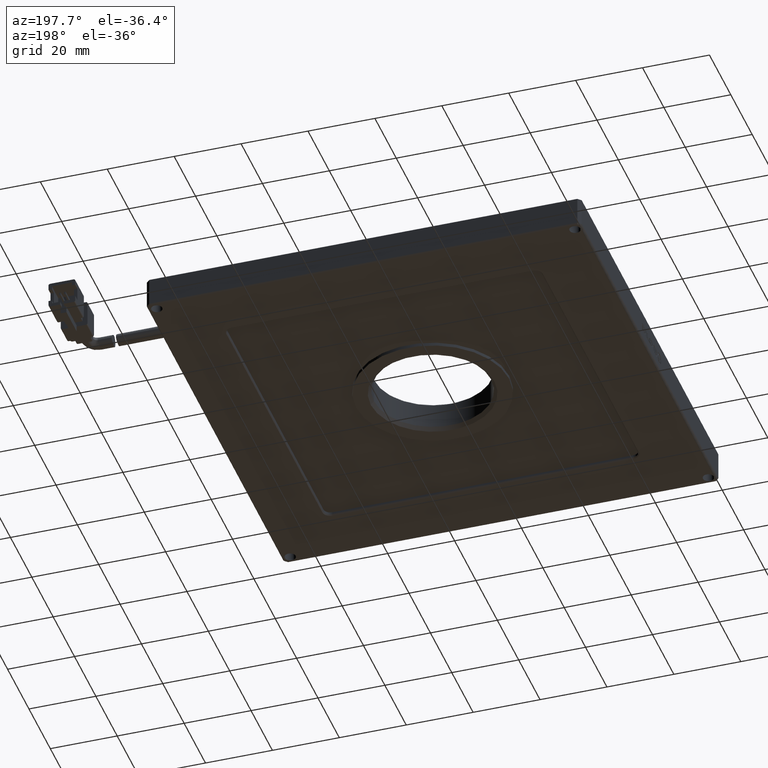
[diagram: clean part render]
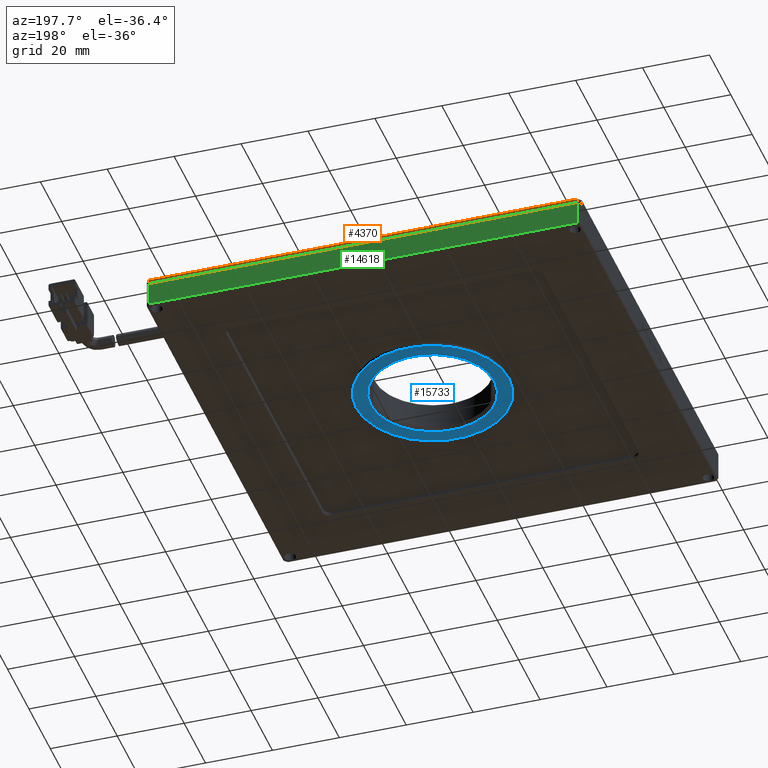
[diagram: same view with three faces highlighted in distinct colors, each labeled with its STEP entity id]
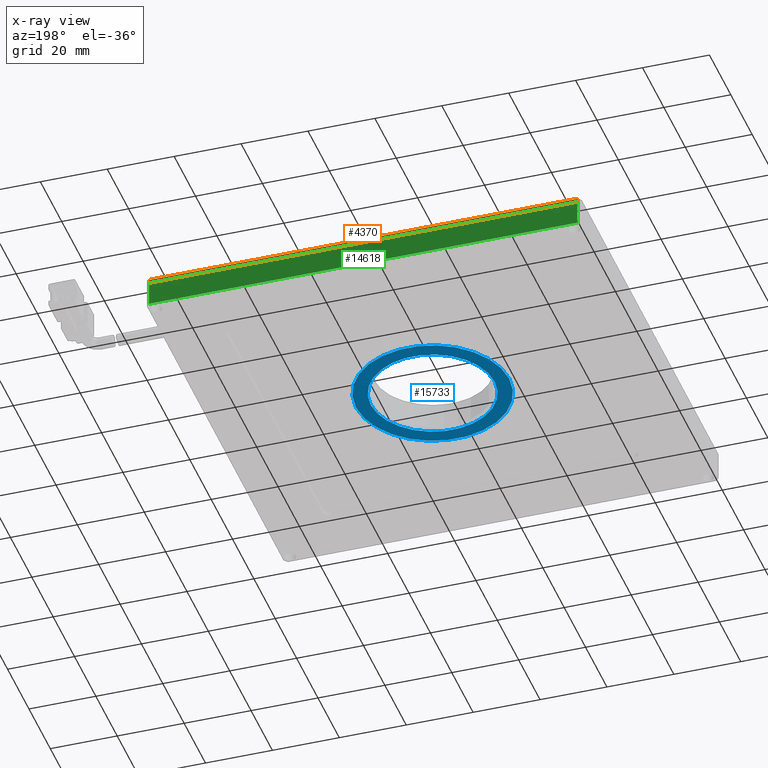
[diagram: x-ray of the same camera — body ghosted, the three highlighted faces saturated]
A machine part, auxiliary view with three faces highlighted in distinct colors.
The next image is the same camera in x-ray (body ghosted, the three faces saturated) — at least one of them is partly hidden behind the body in this view.
Their STEP definitions:

[orange] entity #4370 — the highlighted planar face has unit normal (0, -1, 0).
#1222 = DIRECTION ( 'NONE',  ( -0.0000000000000000000, -0.0000000000000000000, -1.000000000000000000 ) ) ;
#1579 = CARTESIAN_POINT ( 'NONE',  ( -38.87092592592590300, 89.05944444444446600, 6.000000000000000000 ) ) ;
#1596 = CARTESIAN_POINT ( 'NONE',  ( -37.87092592592593100, 89.05944444444446600, 5.699999999999981500 ) ) ;
#1666 = DIRECTION ( 'NONE',  ( -1.000000000000000000, -0.0000000000000000000, -0.0000000000000000000 ) ) ;
#1688 = VERTEX_POINT ( 'NONE', #6967 ) ;
#1726 = VERTEX_POINT ( 'NONE', #8541 ) ;
#2131 = ORIENTED_EDGE ( 'NONE', *, *, #2532, .T. ) ;
#2532 = EDGE_CURVE ( 'NONE', #1726, #19391, #13946, .T. ) ;
#3446 = EDGE_CURVE ( 'NONE', #14021, #1688, #12063, .T. ) ;
#4320 = VECTOR ( 'NONE', #1666, 1000.000000000000000 ) ;
#4370 = ADVANCED_FACE ( 'NONE', ( #10290 ), #20281, .F. ) ;
#6967 = CARTESIAN_POINT ( 'NONE',  ( 90.12907407407409700, 89.05944444444446600, 4.500000000000000900 ) ) ;
#7688 = CARTESIAN_POINT ( 'NONE',  ( 90.12907407407409700, 89.05944444444446600, 5.699999999999984200 ) ) ;
#7796 = DIRECTION ( 'NONE',  ( 0.0000000000000000000, -1.000000000000000000, 0.0000000000000000000 ) ) ;
#8541 = CARTESIAN_POINT ( 'NONE',  ( -37.87092592592593100, 89.05944444444446600, 4.500000000000000900 ) ) ;
#10290 = FACE_OUTER_BOUND ( 'NONE', #12229, .T. ) ;
#10534 = CARTESIAN_POINT ( 'NONE',  ( -37.87092592592593100, 89.05944444444446600, 6.000000000000000000 ) ) ;
#11563 = VECTOR ( 'NONE', #1222, 1000.000000000000000 ) ;
#12006 = LINE ( 'NONE', #14796, #16110 ) ;
#12063 = LINE ( 'NONE', #18389, #11563 ) ;
#12229 = EDGE_LOOP ( 'NONE', ( #15343, #13912, #12649, #2131 ) ) ;
#12649 = ORIENTED_EDGE ( 'NONE', *, *, #16517, .F. ) ;
#12967 = VECTOR ( 'NONE', #16925, 1000.000000000000000 ) ;
#13096 = DIRECTION ( 'NONE',  ( 1.000000000000000000, -0.0000000000000000000, 0.0000000000000000000 ) ) ;
#13912 = ORIENTED_EDGE ( 'NONE', *, *, #3446, .T. ) ;
#13946 = LINE ( 'NONE', #10534, #12967 ) ;
#14021 = VERTEX_POINT ( 'NONE', #7688 ) ;
#14086 = AXIS2_PLACEMENT_3D ( 'NONE', #1579, #7796, #18948 ) ;
#14796 = CARTESIAN_POINT ( 'NONE',  ( -38.87092592592590300, 89.05944444444446600, 4.500000000000000900 ) ) ;
#15343 = ORIENTED_EDGE ( 'NONE', *, *, #19404, .F. ) ;
#15544 = CARTESIAN_POINT ( 'NONE',  ( -38.87092592592590300, 89.05944444444446600, 5.699999999999989500 ) ) ;
#16110 = VECTOR ( 'NONE', #13096, 1000.000000000000000 ) ;
#16517 = EDGE_CURVE ( 'NONE', #1726, #1688, #12006, .T. ) ;
#16925 = DIRECTION ( 'NONE',  ( -0.0000000000000000000, 0.0000000000000000000, 1.000000000000000000 ) ) ;
#17036 = LINE ( 'NONE', #15544, #4320 ) ;
#18389 = CARTESIAN_POINT ( 'NONE',  ( 90.12907407407412600, 89.05944444444446600, 6.000000000000000000 ) ) ;
#18948 = DIRECTION ( 'NONE',  ( 0.0000000000000000000, -0.0000000000000000000, -1.000000000000000000 ) ) ;
#19391 = VERTEX_POINT ( 'NONE', #1596 ) ;
#19404 = EDGE_CURVE ( 'NONE', #14021, #19391, #17036, .T. ) ;
#20281 = PLANE ( 'NONE',  #14086 ) ;

[blue] entity #15733 — the highlighted planar face has unit normal (-0, 0, 1).
#102 = CIRCLE ( 'NONE', #18173, 18.50000000000003600 ) ;
#261 = FACE_OUTER_BOUND ( 'NONE', #11862, .T. ) ;
#519 = FACE_BOUND ( 'NONE', #10931, .T. ) ;
#1564 = DIRECTION ( 'NONE',  ( 0.0000000000000000000, 0.0000000000000000000, -1.000000000000000000 ) ) ;
#1648 = DIRECTION ( 'NONE',  ( -1.000000000000000000, -1.875376730785733800E-016, 0.0000000000000000000 ) ) ;
#1715 = DIRECTION ( 'NONE',  ( 0.0000000000000000000, 0.0000000000000000000, -1.000000000000000000 ) ) ;
#3929 = VERTEX_POINT ( 'NONE', #4072 ) ;
#4072 = CARTESIAN_POINT ( 'NONE',  ( 49.02907407407412400, 24.05944444444445200, -3.000000000000002700 ) ) ;
#4419 = CARTESIAN_POINT ( 'NONE',  ( 26.12907407407411900, 41.55944444444445200, -3.000000000000004400 ) ) ;
#4444 = EDGE_CURVE ( 'NONE', #5616, #19000, #11752, .T. ) ;
#5049 = ORIENTED_EDGE ( 'NONE', *, *, #11605, .F. ) ;
#5200 = CARTESIAN_POINT ( 'NONE',  ( 26.12907407407412200, 24.05944444444444500, -3.000000000000002700 ) ) ;
#5616 = VERTEX_POINT ( 'NONE', #8332 ) ;
#6364 = AXIS2_PLACEMENT_3D ( 'NONE', #5200, #17655, #9790 ) ;
#7923 = CARTESIAN_POINT ( 'NONE',  ( 26.12907407407412200, 24.05944444444444500, -3.000000000000002700 ) ) ;
#8332 = CARTESIAN_POINT ( 'NONE',  ( 7.629074074074086600, 24.05944444444444100, -3.000000000000006200 ) ) ;
#8923 = PLANE ( 'NONE',  #13203 ) ;
#9790 = DIRECTION ( 'NONE',  ( -1.000000000000000000, -1.515042337097647400E-016, 0.0000000000000000000 ) ) ;
#10667 = DIRECTION ( 'NONE',  ( -0.0000000000000000000, 0.0000000000000000000, 1.000000000000000000 ) ) ;
#10847 = CARTESIAN_POINT ( 'NONE',  ( 3.229074074074109700, 24.05944444444444100, -3.000000000000002700 ) ) ;
#10931 = EDGE_LOOP ( 'NONE', ( #17571, #5049 ) ) ;
#11108 = CARTESIAN_POINT ( 'NONE',  ( 26.12907407407412200, 24.05944444444444500, -3.000000000000006200 ) ) ;
#11211 = EDGE_CURVE ( 'NONE', #3929, #18258, #14123, .T. ) ;
#11228 = AXIS2_PLACEMENT_3D ( 'NONE', #11108, #1715, #1648 ) ;
#11605 = EDGE_CURVE ( 'NONE', #19000, #5616, #102, .T. ) ;
#11752 = CIRCLE ( 'NONE', #11228, 18.50000000000003600 ) ;
#11862 = EDGE_LOOP ( 'NONE', ( #13665, #13541 ) ) ;
#12368 = DIRECTION ( 'NONE',  ( -1.000000000000000000, -1.515042337097647400E-016, 0.0000000000000000000 ) ) ;
#13203 = AXIS2_PLACEMENT_3D ( 'NONE', #4419, #10667, #15348 ) ;
#13541 = ORIENTED_EDGE ( 'NONE', *, *, #11211, .F. ) ;
#13665 = ORIENTED_EDGE ( 'NONE', *, *, #17301, .F. ) ;
#14123 = CIRCLE ( 'NONE', #6364, 22.90000000000000900 ) ;
#15348 = DIRECTION ( 'NONE',  ( 1.000000000000000000, 1.110223024625156300E-016, 0.0000000000000000000 ) ) ;
#15733 = ADVANCED_FACE ( 'NONE', ( #261, #519 ), #8923, .F. ) ;
#16566 = AXIS2_PLACEMENT_3D ( 'NONE', #7923, #18876, #12368 ) ;
#17026 = DIRECTION ( 'NONE',  ( -1.000000000000000000, -1.875376730785733800E-016, 0.0000000000000000000 ) ) ;
#17301 = EDGE_CURVE ( 'NONE', #18258, #3929, #19506, .T. ) ;
#17571 = ORIENTED_EDGE ( 'NONE', *, *, #4444, .F. ) ;
#17655 = DIRECTION ( 'NONE',  ( -0.0000000000000000000, -0.0000000000000000000, 1.000000000000000000 ) ) ;
#17692 = CARTESIAN_POINT ( 'NONE',  ( 44.62907407407415400, 24.05944444444444800, -3.000000000000006200 ) ) ;
#18173 = AXIS2_PLACEMENT_3D ( 'NONE', #18659, #1564, #17026 ) ;
#18258 = VERTEX_POINT ( 'NONE', #10847 ) ;
#18659 = CARTESIAN_POINT ( 'NONE',  ( 26.12907407407412200, 24.05944444444444500, -3.000000000000006200 ) ) ;
#18876 = DIRECTION ( 'NONE',  ( -0.0000000000000000000, -0.0000000000000000000, 1.000000000000000000 ) ) ;
#19000 = VERTEX_POINT ( 'NONE', #17692 ) ;
#19506 = CIRCLE ( 'NONE', #16566, 22.90000000000000900 ) ;

[green] entity #14618 — the highlighted planar face has unit normal (0, -1, 0).
#5 = DIRECTION ( 'NONE',  ( 0.0000000000000000000, -1.000000000000000000, 0.0000000000000000000 ) ) ;
#337 = CARTESIAN_POINT ( 'NONE',  ( -38.87092592592590300, 89.05944444444445200, 4.500000000000000000 ) ) ;
#491 = DIRECTION ( 'NONE',  ( -0.0000000000000000000, 0.0000000000000000000, 1.000000000000000000 ) ) ;
#1653 = DIRECTION ( 'NONE',  ( 0.0000000000000000000, -0.0000000000000000000, -1.000000000000000000 ) ) ;
#1870 = VERTEX_POINT ( 'NONE', #6019 ) ;
#2351 = CARTESIAN_POINT ( 'NONE',  ( 90.12907407407412600, 89.05944444444445200, 4.500000000000000000 ) ) ;
#2804 = EDGE_CURVE ( 'NONE', #17401, #6841, #6218, .T. ) ;
#3051 = ORIENTED_EDGE ( 'NONE', *, *, #9071, .F. ) ;
#3470 = CARTESIAN_POINT ( 'NONE',  ( -37.87092592592593100, 89.05944444444445200, 4.500000000000000000 ) ) ;
#3752 = VECTOR ( 'NONE', #491, 1000.000000000000000 ) ;
#4711 = CARTESIAN_POINT ( 'NONE',  ( -37.87092592592593100, 89.05944444444445200, -2.699999999999980200 ) ) ;
#5466 = EDGE_CURVE ( 'NONE', #1870, #6841, #10180, .T. ) ;
#6019 = CARTESIAN_POINT ( 'NONE',  ( -37.87092592592593100, 89.05944444444445200, 4.500000000000000000 ) ) ;
#6071 = CARTESIAN_POINT ( 'NONE',  ( -38.87092592592590300, 89.05944444444445200, -2.699999999999977500 ) ) ;
#6218 = LINE ( 'NONE', #19172, #3752 ) ;
#6841 = VERTEX_POINT ( 'NONE', #2351 ) ;
#6947 = CARTESIAN_POINT ( 'NONE',  ( 90.12907407407409700, 89.05944444444445200, -2.699999999999981500 ) ) ;
#7110 = ORIENTED_EDGE ( 'NONE', *, *, #16940, .F. ) ;
#8185 = VECTOR ( 'NONE', #14438, 1000.000000000000000 ) ;
#9071 = EDGE_CURVE ( 'NONE', #16876, #17401, #10598, .T. ) ;
#9135 = ORIENTED_EDGE ( 'NONE', *, *, #2804, .F. ) ;
#9174 = EDGE_LOOP ( 'NONE', ( #3051, #7110, #17534, #9135 ) ) ;
#9357 = CARTESIAN_POINT ( 'NONE',  ( -38.87092592592590300, 89.05944444444445200, 4.500000000000000000 ) ) ;
#10180 = LINE ( 'NONE', #337, #8185 ) ;
#10598 = LINE ( 'NONE', #6071, #14736 ) ;
#12727 = DIRECTION ( 'NONE',  ( 0.0000000000000000000, -0.0000000000000000000, -1.000000000000000000 ) ) ;
#13443 = VECTOR ( 'NONE', #12727, 1000.000000000000000 ) ;
#13703 = FACE_OUTER_BOUND ( 'NONE', #9174, .T. ) ;
#14438 = DIRECTION ( 'NONE',  ( 1.000000000000000000, -0.0000000000000000000, 0.0000000000000000000 ) ) ;
#14618 = ADVANCED_FACE ( 'NONE', ( #13703 ), #18744, .F. ) ;
#14736 = VECTOR ( 'NONE', #18581, 1000.000000000000000 ) ;
#16846 = LINE ( 'NONE', #3470, #13443 ) ;
#16876 = VERTEX_POINT ( 'NONE', #4711 ) ;
#16940 = EDGE_CURVE ( 'NONE', #1870, #16876, #16846, .T. ) ;
#17401 = VERTEX_POINT ( 'NONE', #6947 ) ;
#17534 = ORIENTED_EDGE ( 'NONE', *, *, #5466, .T. ) ;
#18581 = DIRECTION ( 'NONE',  ( 1.000000000000000000, -0.0000000000000000000, 0.0000000000000000000 ) ) ;
#18744 = PLANE ( 'NONE',  #19039 ) ;
#19039 = AXIS2_PLACEMENT_3D ( 'NONE', #9357, #5, #1653 ) ;
#19172 = CARTESIAN_POINT ( 'NONE',  ( 90.12907407407412600, 89.05944444444445200, 4.500000000000000000 ) ) ;